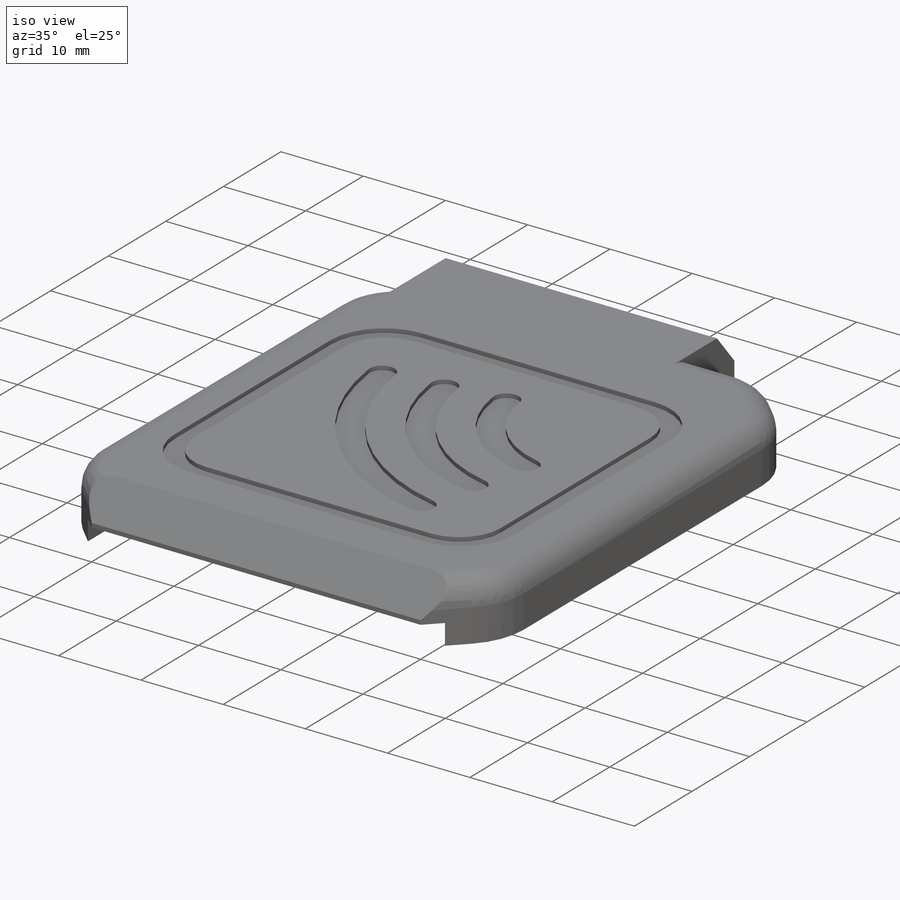
[diagram: iso view]
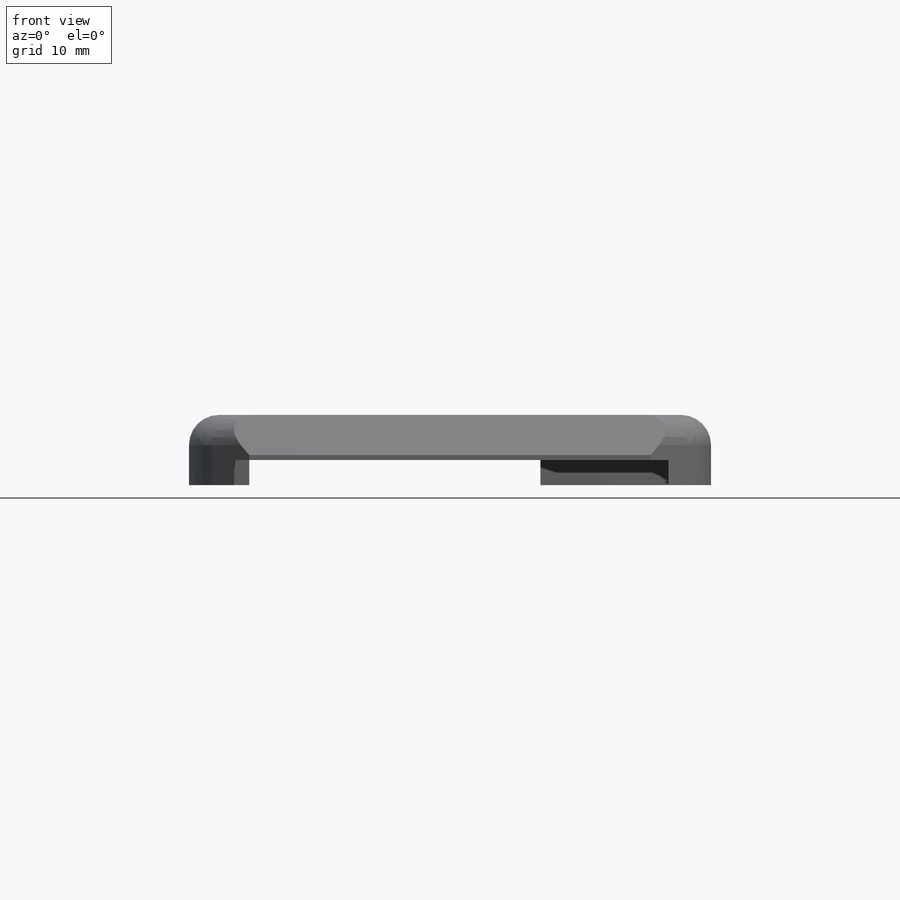
[diagram: front view]
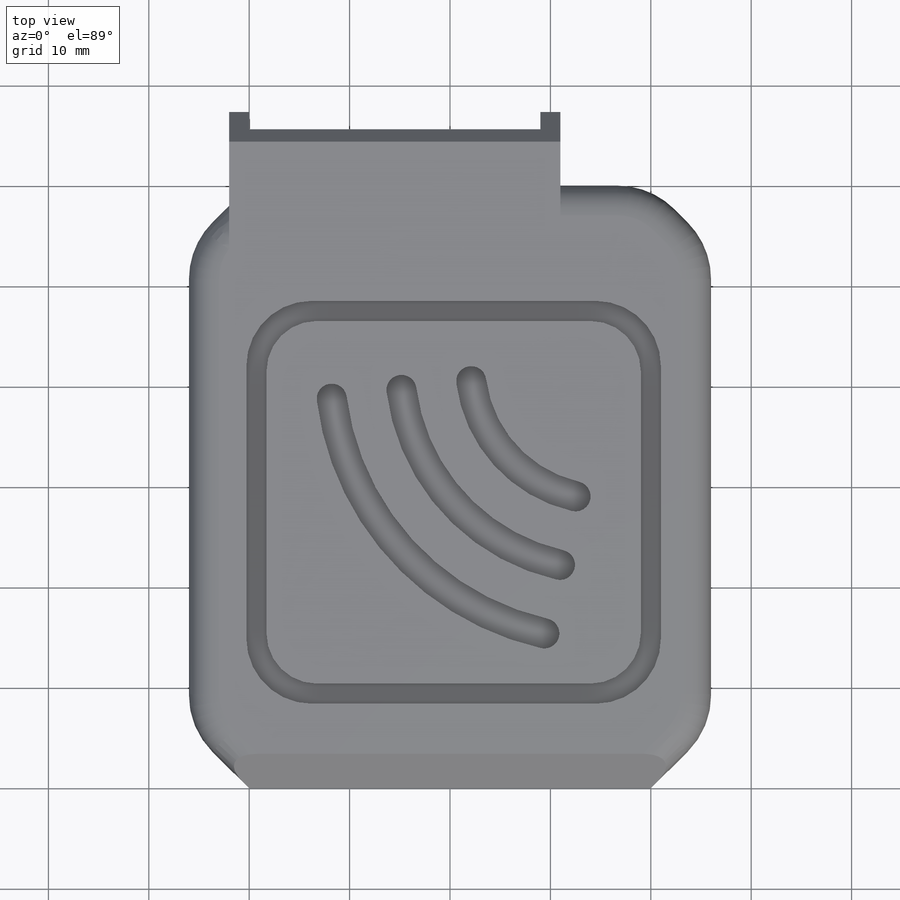
[diagram: top view]
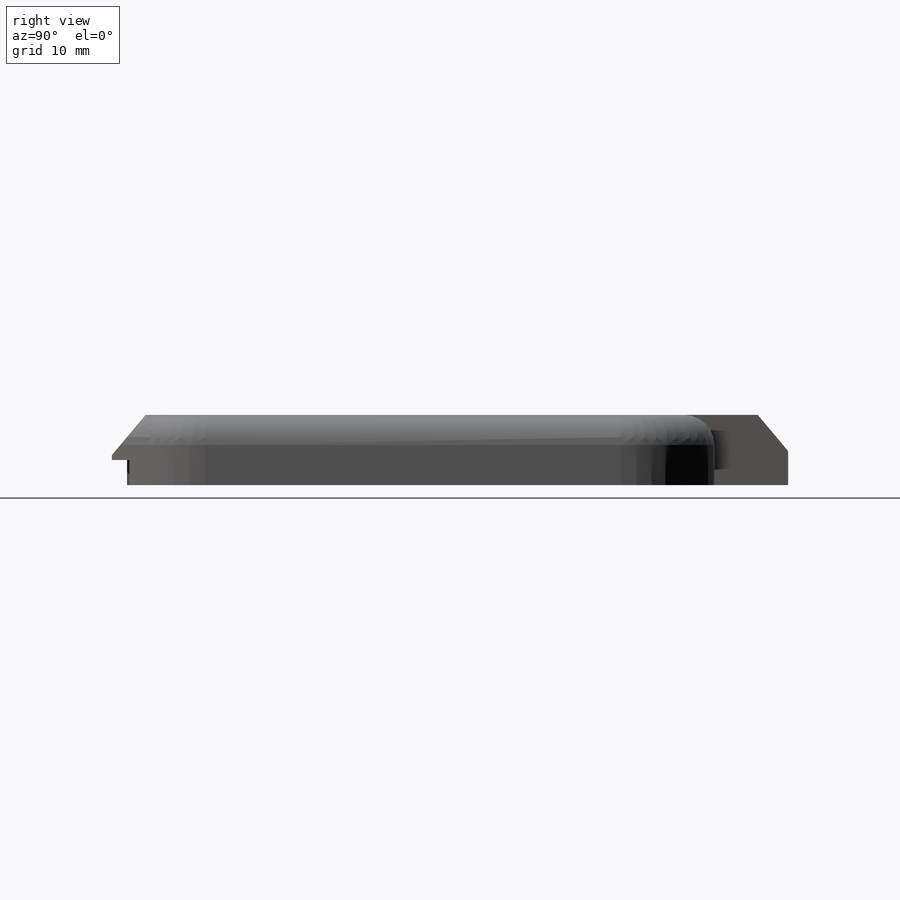
[diagram: right view]
SOLIDWORKS PART (.sldprt)
format: sldprt  version: not decoded by parser v0  size: 535,552 bytes
history: native  units: mm
features: sketch x9, cut_extrude x5, extrude x4, fillet x4, chamfer x2, material x1 (+12 scaffold rows collapsed)
feature tree (37):
  scaffold x12  (default folders/planes/origin — collapsed)
  material  "Material <not specified>"
  sketch  "Sketch1"  dims[D1=52.0mm D2=48.0mm D3=26.0mm D4=24.0mm D5=6.0mm D6=6.0mm D7=6.0mm D8=6.0mm]
  extrude  "Boss-Extrude1"  Depth=7mm
  sketch  "Sketch2"  dims[c1.D1=~44.614593mm c1.D2=~41.904958mm c2.D1=2.5mm c2.D2=6.0mm c2.D3=10.5mm c2.D4=8.0mm]
  cut_extrude  "Cut-Extrude1"  Depth=0.75mm
  sketch  "Sketch3"  dims[D1=6.0mm D2=6.0mm D3=6.0mm D4=6.0mm]
  extrude  "Boss-Extrude2"  Depth=3mm
  sketch  "Sketch4"  dims[c1.D1=~16.326941mm c1.D2=~45.912186mm c2.D1=4.5mm c2.D2=4.25mm]
  cut_extrude  "Cut-Extrude2"  Depth=2.5mm
  sketch  "Sketch5"  dims[c1.D1=~4.536178mm c1.D3=2.5mm c2.D1=9.0mm c2.D2=9.0mm c2.D4=4.25mm c2.D5=51.5mm c3.D1=4.25mm c3.D4=9.0mm c3.D6=4.25mm c3.D5=8.0mm c3.D7=3.5mm]
  cut_extrude  "Cut-Extrude3"  Depth=0.5mm
  sketch  "Sketch6"  dims[c1.D1=41.5mm c1.D2=43.5mm c2.D1=~6.574565mm c2.D2=~6.574565mm c3.D1=7.0mm c3.D2=7.0mm c3.D3=8.0mm c3.D4=8.0mm]
  extrude  "Boss-Extrude3"  Depth=0.75mm
  sketch  "Sketch7"  dims[c1.D1=1.5mm c1.D2=1.5mm c1.D3=1.5mm c1.D4=12.0mm c1.D5=19.0mm c1.D6=25.0mm c2.D5=19.0mm c2.D6=24.0mm c2.D13=2.0mm c2.D15=2.0mm c2.D12=2.0mm c2.D19=2.0mm c3.D5=4.0mm c3.D6=4.0mm c3.D7=10.0mm c3.D8=12.0mm c4.D7=35.0deg c4.D9=30.0deg c5.D7=35.0deg c5.D8=~40.295247mm c5.D9=~36.87908mm c6.D8=~43.478494mm c6.D9=~40.605808mm c7.D8=2.0mm c7.D9=2.0mm c7.D10=2.0mm c7.D11=2.0mm c7.D12=6.0mm c7.D13=6.0mm c7.D14=5.0mm c8.D13=6.5mm c8.D15=6.0mm c8.D12=6.5mm c8.D16=3.5mm c8.D17=5.0mm c8.D18=~5.714471mm]
  cut_extrude  "Cut-Extrude4"  Depth=0.5mm
  chamfer  "Chamfer1"  Distance=4mm Angle=40deg
  fillet  "Fillet1"  Radius=8mm
  fillet  "Fillet2"  Radius=3mm
  fillet  "Fillet3"  Radius=5mm
  fillet  "Fillet4"  Radius=6.5mm
  sketch  "Sketch11"  dims[D1=4.0mm D2=33.0mm D3=7.35mm]
  extrude  "Boss-Extrude4"  [1 undecoded]
  chamfer  "Chamfer2"  Distance=3.6mm Angle=40deg
  sketch  "Sketch12"  dims[c1.D1=~15.763162mm c1.D2=~29.637735mm c2.D1=2.0mm c2.D2=2.0mm]
  cut_extrude  "Cut-Extrude7"  [1 undecoded]
decode coverage: 22 of 24 modeling features carry decoded parameters
note: ~ marks probable driven/reference dimensions
note: 2 parameter values undecoded
note: suppression state not decoded; provenance and decode notes live in map.json
